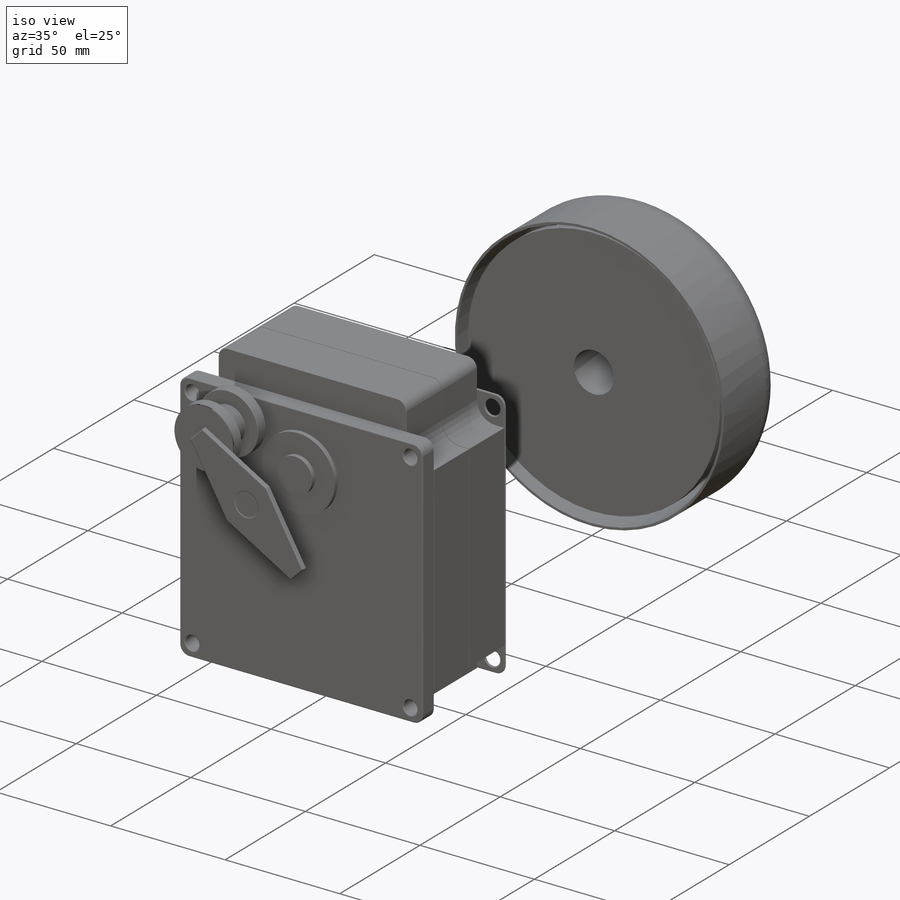
[diagram: iso view]
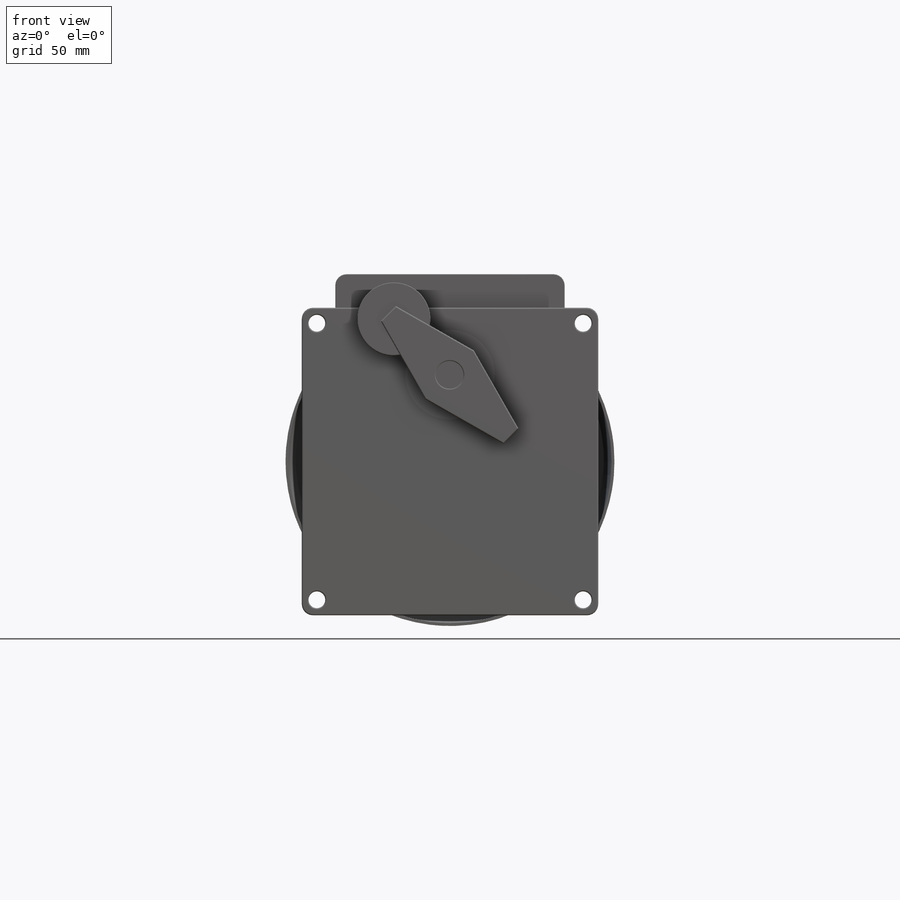
[diagram: front view]
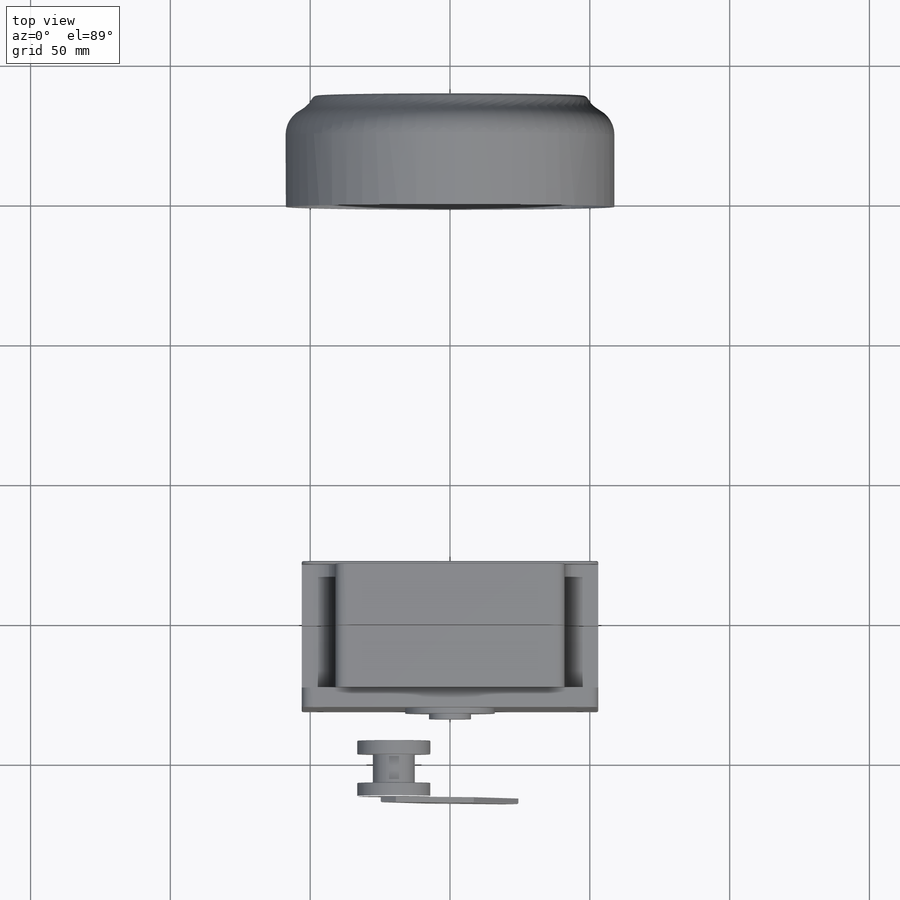
[diagram: top view]
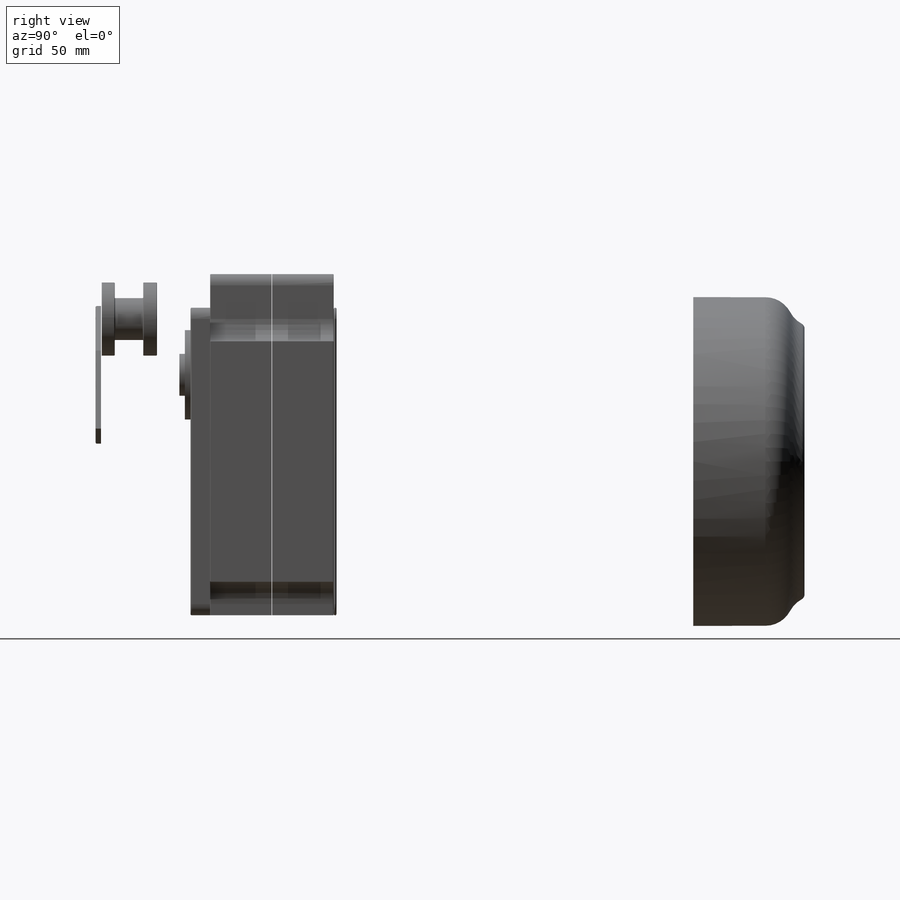
[diagram: right view]
SOLIDWORKS PART (.sldprt)
format: sldprt  version: not decoded by parser v0  size: 5,510,144 bytes
history: native  units: mm
features: sketch x48, fillet x27, extrude x22, cut_extrude x17, plane x9, revolve x4, shell x2, material x1, cut_revolve x1, mirror x1, sweep x1, dome x1 (+11 scaffold rows collapsed)
feature tree (145):
  scaffold x11  (default folders/planes/origin — collapsed)
  material  "Material <not specified>"
  sketch  "Sketch1"  dims[c1.D1=50.0mm c1.D2=90.0mm c1.D3=50.0mm c1.D4=50.0mm c1.D5=50.0mm c1.D6=50.0mm c1.D7=~0.82592mm c2.D3=56.0mm c2.D4=56.0mm]
  extrude  "Boss-Extrude1"  Depth=100mm
  sketch  "Sketch2"  dims[c1.D1=2.0mm c1.D2=5.0mm c1.D3=~2.376381mm c2.D1=90.0deg]
  cut_revolve  "Cut-Revolve4"  Angle=360deg
  sketch  "Sketch3"  dims[c1.D4=2.0mm c1.D6=2.0mm c1.D7=0.75mm c2.D4=4.0mm c2.D2=1.25mm c2.D3=0.5mm c3.D4=1.25mm c3.D2=1.0mm c3.D5=0.5mm c3.D6=3.0mm c4.D2=3.5mm c4.D3=3.0mm c4.D1=7.0mm c5.D2=15.0mm c5.D3=3.0mm c5.D5=4.0mm c5.D8=7.0mm c5.D9=0.2mm c5.D10=52.5mm c6.D2=15.0mm c6.D1=2.0mm c6.D3=5.0mm c6.D4=1.0mm c7.D3=2.55mm c7.D1=4.0]
  extrude  "Boss-Extrude2"  Depth=100mm
  fillet  "Fillet2"  Radius=0.25mm
  fillet  "Fillet3"  Radius=0.25mm
  fillet  "Fillet4"  Radius=0.25mm
  plane  "Plane1"  Offset=30mm
  sketch  "Sketch4"  dims[c1.D3=2.0mm c1.D4=2.0mm c1.D1=20.0mm c1.D2=10.0mm c2.D1=20.0mm]
  extrude  "Boss-Extrude3"  Depth=40mm
  sketch  "Sketch8"
  extrude  "Boss-Extrude7"  Depth=20mm
  sketch  "Sketch9"
  extrude  "Boss-Extrude8"  Depth=20mm
  fillet  "Fillet7"  Radius=5mm
  fillet  "Fillet8"  Radius=3mm
  fillet  "Fillet9"  Radius=2mm
  sketch  "Sketch10"  dims[D4=0.75mm D1=4.0mm D2=23.0mm D3=41.0mm]
  revolve  "Revolve1"  Angle=360deg
  sketch  "Sketch11"  dims[D1=60.0mm D2=2.0mm D3=2.0mm D4=7.0mm D5=17.0mm D6=25.0mm]
  sketch  "Sketch12"  dims[D1=110.0mm D2=106.0mm]
  extrude  "Boss-Extrude9"  Depth=2mm
  plane  "Plane3"  Offset=1mm
  sketch  "Sketch13"  dims[D2=4.0mm D1=12.0mm D3=12.0mm]
  extrude  "Boss-Extrude10"  Depth=22mm
  fillet  "Fillet10"  Radius=4mm
  sketch  "Sketch14"  dims[D2=8.0mm D1=12.0mm]
  cut_extrude  "Cut-Extrude1"  Depth=23mm
  plane  "Plane4"  Offset=152.1mm
  mirror  "Mirror1"
  sketch  "Sketch15"  dims[D1=0.0mm]
  extrude  "Boss-Extrude11"  Depth=7mm
  sketch  "Sketch16"  dims[D1=6.0mm D2=6.0mm]
  cut_extrude  "Cut-Extrude2"  Depth=70mm
  fillet  "Fillet12"  Radius=0.25mm
  fillet  "Fillet13"  Radius=0.5mm
  fillet  "Fillet14"  Radius=0.25mm
  fillet  "Fillet15"  Radius=0.5mm
  plane  "Plane5"  Offset=78mm
  sketch  "Sketch17"  dims[D1=70.0mm D2=10.0mm]
  extrude  "Boss-Extrude13"  [1 undecoded]
  fillet  "Fillet16"  Radius=2mm
  sketch  "Sketch18"  dims[D1=0.0mm]
  extrude  "Boss-Extrude14"  Depth=5mm
  sketch  "Sketch19"  dims[D3=1.0mm D1=5.0mm D2=5.0mm]
  cut_extrude  "Cut-Extrude3"  Depth=1.5mm
  fillet  "Fillet17"  Radius=0.25mm
  fillet  "Fillet24"  Radius=0.25mm
  sketch  "Sketch22"  dims[D1=35.8mm D2=4.0mm]
  revolve  "Revolve3"  Angle=360deg
  fillet  "Fillet25"  Radius=10mm
  fillet  "Fillet26"  Radius=2mm
  shell  "Shell1"  Thickness=1mm
  sketch  "Sketch23"  dims[D1=1.5mm D2=4.46mm]
  cut_extrude  "Cut-Extrude5"  [1 undecoded]
  sketch  "Sketch24"  dims[c1.D1=15.0mm c1.D2=40.0mm c1.D3=10.0mm c1.D4=4.0mm c2.D2=4.0mm c2.D3=22.0mm]
  revolve  "Revolve4"  Angle=360deg
  sketch  "Sketch25"
  extrude  "Boss-Extrude18"  [1 undecoded]
  sketch  "Sketch27"  dims[D1=0.0mm]
  extrude  "Boss-Extrude19"  Depth=1mm
  sketch  "Sketch28"
  cut_extrude  "Cut-Extrude6"  Depth=2mm
  fillet  "Fillet27"  Radius=0.5mm
  sketch  "Sketch30"  dims[D1=32.0mm D2=2.0mm D3=70.0mm D4=7.5mm D5=2.0mm D6=15.0mm]
  revolve  "Revolve5"  Angle=360deg
  sketch  "Sketch32"  dims[D1=10.0mm]
  extrude  "Boss-Extrude20"  Depth=36mm
  fillet  "Fillet28"  Radius=3mm
  sketch  "Sketch33"  dims[D1=12.0mm D2=5.0mm D3=10.0mm]
  cut_extrude  "Cut-Extrude7"  Depth=30mm
  sketch  "Sketch34"
  extrude  "Boss-Extrude21"  Depth=2mm
  sketch  "Sketch35"  dims[D1=0.0mm]
  cut_extrude  "Cut-Extrude8"  Depth=2mm
  sketch  "Sketch36"  dims[D1=25.0mm]
  extrude  "Boss-Extrude23"  Depth=22mm
  sketch  "Sketch38"  dims[D1=10.0mm]
  cut_extrude  "Cut-Extrude9"  Depth=2mm
  fillet  "Fillet37"  Radius=0.25mm
  plane  "Plane6"  Offset=10mm
  sketch  "Sketch47"
  plane  "Plane7"
  sketch  "Sketch41"  dims[D1=10.0mm]
  sketch  "Sketch39"  dims[c1.D1=~32.922567mm c2.D1=45.0deg c2.D2=31.0mm c2.D3=31.0mm]
  extrude  "Boss-Extrude24"  Depth=2mm
  sketch  "Sketch42"
  cut_extrude  "Cut-Extrude10"  Depth=0.2mm
  sketch  "Sketch43"
  extrude  "Boss-Extrude25"  [1 undecoded]
  plane  "Plane8"
  plane  "Plane9"  Offset=220mm
  sweep  "Sweep3"
  sketch  "Sketch48"
  sketch  "Sketch44"  dims[D1=15.0mm]
  cut_extrude  "Cut-Extrude11"  Depth=10.2mm
  fillet  "Fillet29"  Radius=0.25mm
  fillet  "Fillet30"  Radius=0.25mm
  plane  "Plane10"  Offset=0.1mm
  sketch  "Sketch45"  dims[D1=0.0mm]
  extrude  "Boss-Extrude26"  Depth=3mm
  fillet  "Fillet31"  Radius=0.25mm
  sketch  "Sketch46"  dims[D1=12.0mm D2=12.0mm]
  extrude  "Boss-Extrude27"  Depth=2mm
  sketch  "Sketch49"  dims[c1.D2=0.5mm c1.D3=2.0mm c1.D4=0.75mm c1.D1=1.0mm c2.D2=1.0mm c2.D3=1.0mm]
  extrude  "Boss-Extrude28"  Depth=20mm
  fillet  "Fillet32"  Radius=0.25mm
  sketch  "Sketch51"  dims[D1=0.1mm D2=0.05mm D3=17.0]
  extrude  "Boss-Extrude29"  Depth=10mm
  sketch  "Sketch52"  dims[D1=16.0mm]
  cut_extrude  "Cut-Extrude12"  Depth=2mm
  sketch  "Sketch53"  dims[D1=6.0mm]
  cut_extrude  "Cut-Extrude13"  Depth=15mm
  sketch  "Sketch54"
  cut_extrude  "Cut-Extrude14"  Depth=22mm
  fillet  "Fillet33"  Radius=0.25mm
  sketch  "Sketch55"  dims[D1=6.0mm]
  cut_extrude  "Cut-Extrude15"  Depth=22mm
  sketch  "Sketch56"  dims[D1=6.0mm]
  cut_extrude  "Cut-Extrude16"  Depth=22mm
  fillet  "Fillet34"  Radius=0.25mm
  sketch  "Sketch57"  dims[D1=6.0mm D2=6.0mm]
  cut_extrude  "Cut-Extrude17"  Depth=3mm
  shell  "Shell2"  Thickness=1mm
  sketch  "Sketch58"
  extrude  "Boss-Extrude30"  Depth=2mm
  dome  "Dome1"
  sketch  "Sketch59"  dims[D1=3.0mm]
  cut_extrude  "Cut-Extrude18"  Depth=10mm
  fillet  "Fillet35"  Radius=0.5mm
  fillet  "Fillet36"  Radius=0.5mm
decode coverage: 106 of 124 modeling features carry decoded parameters
note: ~ marks probable driven/reference dimensions
note: 4 parameter values undecoded
summary: no parameter record found for 4 features
note: suppression state not decoded; provenance and decode notes live in map.json
